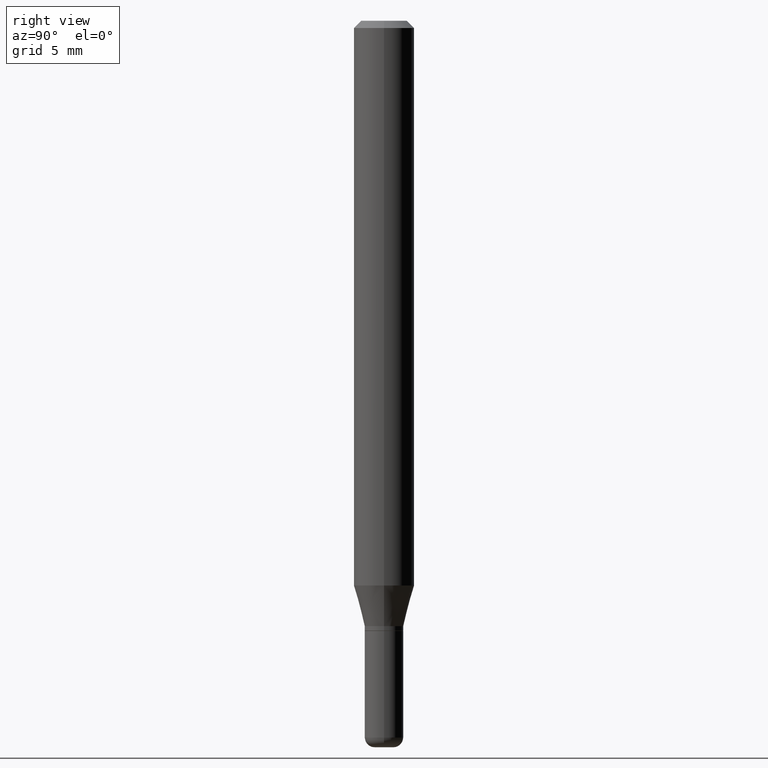
[diagram: clean part render]
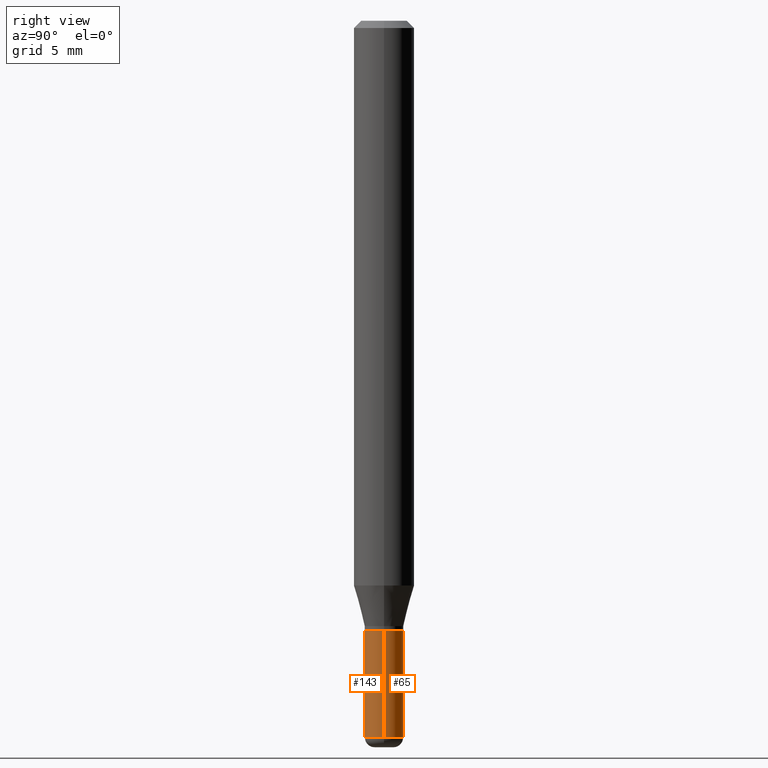
[diagram: same view with one multi-face feature highlighted, each face labeled with its STEP entity id]
A machine part, right view. The highlighted faces form ONE feature: a constant-radius fillet chain: 2 tangent blend faces with common blend radius 1.016 mm. The faces share edges in the B-rep.
Their STEP definitions:
[1] entity #65 (Cylinder):
#8 = VERTEX_POINT ( 'NONE', #139 ) ;
#24 = DIRECTION ( 'NONE',  ( -2.445468806185136597E-29, 3.491481338843145583E-15, 1.000000000000000000 ) ) ;
#31 = DIRECTION ( 'NONE',  ( -2.445468806185136877E-29, 3.491481338843145188E-15, 1.000000000000000000 ) ) ;
#65 = ADVANCED_FACE ( 'NONE', ( #506 ), #347, .T. ) ;
#77 = CARTESIAN_POINT ( 'NONE',  ( 3.081290695793272291E-29, -4.399266486942364120E-15, -1.260000000000000231 ) ) ;
#118 = VECTOR ( 'NONE', #31, 39.37007874015748143 ) ;
#139 = CARTESIAN_POINT ( 'NONE',  ( -0.04000000000000003553, -4.499112339911069567E-15, -1.479999999999999982 ) ) ;
#141 = VERTEX_POINT ( 'NONE', #507 ) ;
#148 = EDGE_CURVE ( 'NONE', #336, #403, #439, .T. ) ;
#194 = CIRCLE ( 'NONE', #448, 0.04000000000000000083 ) ;
#197 = ORIENTED_EDGE ( 'NONE', *, *, #148, .F. ) ;
#208 = CARTESIAN_POINT ( 'NONE',  ( 0.04000000000000001471, -2.793185071074507769E-16, 1.950470710318375438E-30 ) ) ;
#224 = CARTESIAN_POINT ( 'NONE',  ( -0.04000000000000001471, 2.842170943040401789E-16, -1.967574036101963210E-30 ) ) ;
#235 = AXIS2_PLACEMENT_3D ( 'NONE', #360, #323, #475 ) ;
#238 = EDGE_LOOP ( 'NONE', ( #313, #304, #288, #197 ) ) ;
#249 = DIRECTION ( 'NONE',  ( 1.000000000000000000, -6.982962677686259611E-15, 0.000000000000000000 ) ) ;
#282 = CIRCLE ( 'NONE', #235, 0.04000000000000003553 ) ;
#283 = DIRECTION ( 'NONE',  ( 1.000000000000000000, -6.982962677686266711E-15, 4.876176775795936914E-29 ) ) ;
#288 = ORIENTED_EDGE ( 'NONE', *, *, #297, .F. ) ;
#297 = EDGE_CURVE ( 'NONE', #403, #141, #194, .T. ) ;
#304 = ORIENTED_EDGE ( 'NONE', *, *, #368, .T. ) ;
#308 = EDGE_CURVE ( 'NONE', #336, #8, #282, .T. ) ;
#313 = ORIENTED_EDGE ( 'NONE', *, *, #308, .T. ) ;
#323 = DIRECTION ( 'NONE',  ( -2.445468806185136597E-29, 3.491481338843145583E-15, 1.000000000000000000 ) ) ;
#324 = DIRECTION ( 'NONE',  ( -2.445468806185136597E-29, 3.491481338843145583E-15, 1.000000000000000000 ) ) ;
#327 = VECTOR ( 'NONE', #462, 39.37007874015748143 ) ;
#336 = VERTEX_POINT ( 'NONE', #505 ) ;
#341 = LINE ( 'NONE', #224, #327 ) ;
#347 = CYLINDRICAL_SURFACE ( 'NONE', #402, 0.04000000000000001471 ) ;
#360 = CARTESIAN_POINT ( 'NONE',  ( 3.619293833154002365E-29, -5.167392381487854879E-15, -1.479999999999999982 ) ) ;
#368 = EDGE_CURVE ( 'NONE', #8, #141, #341, .T. ) ;
#402 = AXIS2_PLACEMENT_3D ( 'NONE', #504, #324, #283 ) ;
#403 = VERTEX_POINT ( 'NONE', #419 ) ;
#419 = CARTESIAN_POINT ( 'NONE',  ( 0.04000000000000000083, -4.678584994049814947E-15, -1.260000000000000231 ) ) ;
#439 = LINE ( 'NONE', #208, #118 ) ;
#448 = AXIS2_PLACEMENT_3D ( 'NONE', #77, #24, #249 ) ;
#462 = DIRECTION ( 'NONE',  ( -2.445468806185136877E-29, 3.491481338843145188E-15, 1.000000000000000000 ) ) ;
#475 = DIRECTION ( 'NONE',  ( 1.000000000000000000, -6.982962677686277755E-15, 0.000000000000000000 ) ) ;
#504 = CARTESIAN_POINT ( 'NONE',  ( 0.000000000000000000, 0.000000000000000000, 0.000000000000000000 ) ) ;
#505 = CARTESIAN_POINT ( 'NONE',  ( 0.04000000000000003553, -5.446710888595306494E-15, -1.479999999999999982 ) ) ;
#506 = FACE_OUTER_BOUND ( 'NONE', #238, .T. ) ;
#507 = CARTESIAN_POINT ( 'NONE',  ( -0.04000000000000000083, -4.499112339911069567E-15, -1.260000000000000231 ) ) ;
[2] entity #143 (Cylinder):
#8 = VERTEX_POINT ( 'NONE', #139 ) ;
#14 = EDGE_LOOP ( 'NONE', ( #126, #417, #117, #219 ) ) ;
#20 = FACE_OUTER_BOUND ( 'NONE', #14, .T. ) ;
#25 = CYLINDRICAL_SURFACE ( 'NONE', #251, 0.04000000000000001471 ) ;
#30 = DIRECTION ( 'NONE',  ( -2.445468806185136597E-29, 3.491481338843145583E-15, 1.000000000000000000 ) ) ;
#31 = DIRECTION ( 'NONE',  ( -2.445468806185136877E-29, 3.491481338843145188E-15, 1.000000000000000000 ) ) ;
#75 = CARTESIAN_POINT ( 'NONE',  ( 3.081290695793272291E-29, -4.399266486942364120E-15, -1.260000000000000231 ) ) ;
#82 = CIRCLE ( 'NONE', #188, 0.04000000000000003553 ) ;
#117 = ORIENTED_EDGE ( 'NONE', *, *, #148, .T. ) ;
#118 = VECTOR ( 'NONE', #31, 39.37007874015748143 ) ;
#126 = ORIENTED_EDGE ( 'NONE', *, *, #368, .F. ) ;
#131 = CIRCLE ( 'NONE', #477, 0.04000000000000000083 ) ;
#139 = CARTESIAN_POINT ( 'NONE',  ( -0.04000000000000003553, -4.499112339911069567E-15, -1.479999999999999982 ) ) ;
#141 = VERTEX_POINT ( 'NONE', #507 ) ;
#143 = ADVANCED_FACE ( 'NONE', ( #20 ), #25, .T. ) ;
#148 = EDGE_CURVE ( 'NONE', #336, #403, #439, .T. ) ;
#164 = DIRECTION ( 'NONE',  ( 1.000000000000000000, -6.982962677686266711E-15, 4.876176775795936914E-29 ) ) ;
#188 = AXIS2_PLACEMENT_3D ( 'NONE', #248, #30, #348 ) ;
#208 = CARTESIAN_POINT ( 'NONE',  ( 0.04000000000000001471, -2.793185071074507769E-16, 1.950470710318375438E-30 ) ) ;
#218 = DIRECTION ( 'NONE',  ( -2.445468806185136597E-29, 3.491481338843145583E-15, 1.000000000000000000 ) ) ;
#219 = ORIENTED_EDGE ( 'NONE', *, *, #440, .F. ) ;
#224 = CARTESIAN_POINT ( 'NONE',  ( -0.04000000000000001471, 2.842170943040401789E-16, -1.967574036101963210E-30 ) ) ;
#248 = CARTESIAN_POINT ( 'NONE',  ( 3.619293833154002365E-29, -5.167392381487854879E-15, -1.479999999999999982 ) ) ;
#250 = DIRECTION ( 'NONE',  ( 1.000000000000000000, -6.982962677686259611E-15, 0.000000000000000000 ) ) ;
#251 = AXIS2_PLACEMENT_3D ( 'NONE', #287, #472, #164 ) ;
#287 = CARTESIAN_POINT ( 'NONE',  ( 0.000000000000000000, 0.000000000000000000, 0.000000000000000000 ) ) ;
#327 = VECTOR ( 'NONE', #462, 39.37007874015748143 ) ;
#336 = VERTEX_POINT ( 'NONE', #505 ) ;
#341 = LINE ( 'NONE', #224, #327 ) ;
#348 = DIRECTION ( 'NONE',  ( 1.000000000000000000, -6.982962677686277755E-15, 0.000000000000000000 ) ) ;
#368 = EDGE_CURVE ( 'NONE', #8, #141, #341, .T. ) ;
#403 = VERTEX_POINT ( 'NONE', #419 ) ;
#417 = ORIENTED_EDGE ( 'NONE', *, *, #432, .T. ) ;
#419 = CARTESIAN_POINT ( 'NONE',  ( 0.04000000000000000083, -4.678584994049814947E-15, -1.260000000000000231 ) ) ;
#432 = EDGE_CURVE ( 'NONE', #8, #336, #82, .T. ) ;
#439 = LINE ( 'NONE', #208, #118 ) ;
#440 = EDGE_CURVE ( 'NONE', #141, #403, #131, .T. ) ;
#462 = DIRECTION ( 'NONE',  ( -2.445468806185136877E-29, 3.491481338843145188E-15, 1.000000000000000000 ) ) ;
#472 = DIRECTION ( 'NONE',  ( -2.445468806185136597E-29, 3.491481338843145583E-15, 1.000000000000000000 ) ) ;
#477 = AXIS2_PLACEMENT_3D ( 'NONE', #75, #218, #250 ) ;
#505 = CARTESIAN_POINT ( 'NONE',  ( 0.04000000000000003553, -5.446710888595306494E-15, -1.479999999999999982 ) ) ;
#507 = CARTESIAN_POINT ( 'NONE',  ( -0.04000000000000000083, -4.499112339911069567E-15, -1.260000000000000231 ) ) ;